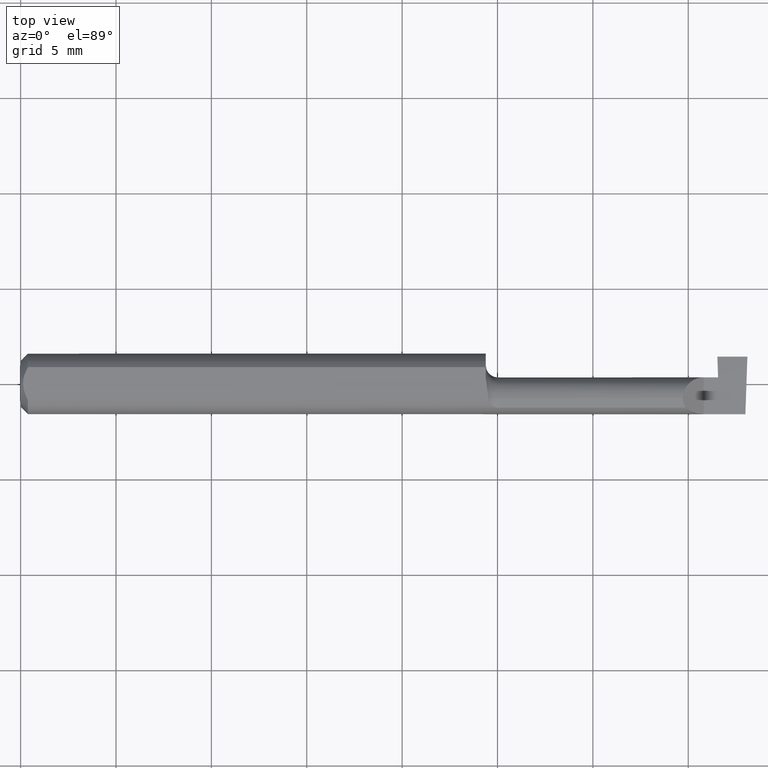
[diagram: clean part render]
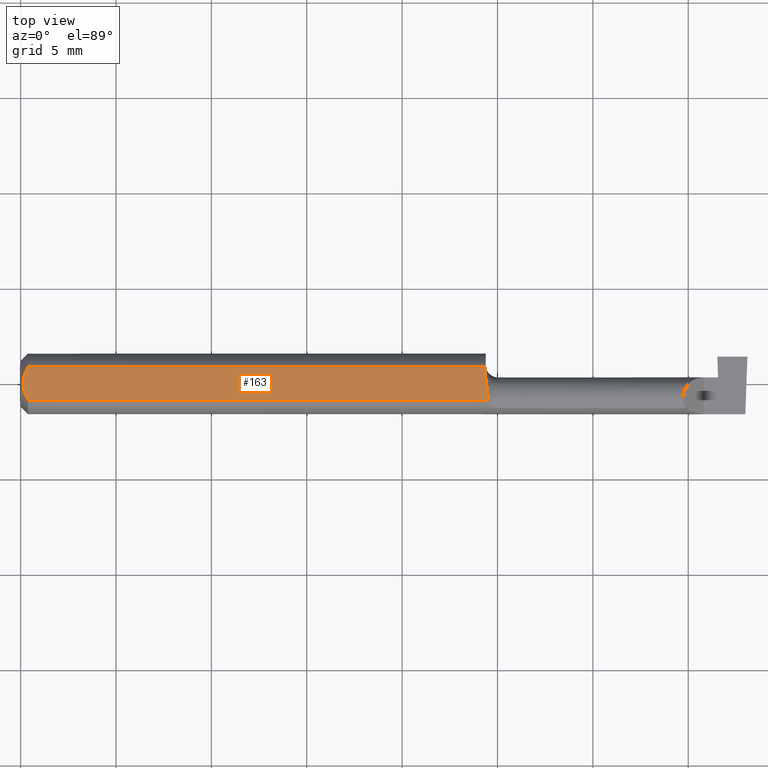
[diagram: same view with one face highlighted and labeled with its STEP entity id]
A machine part, top view. The second image highlights one B-rep face of the part: STEP entity #163.
In plain terms, the highlighted planar face has unit normal (0, -0, 1).
Its self-contained STEP definition (entity closure, byte-faithful):
#4 = LINE ( 'NONE', #331, #316 ) ;
#16 = EDGE_CURVE ( 'NONE', #155, #167, #554, .T. ) ;
#36 = CARTESIAN_POINT ( 'NONE',  ( 0.9653849547540671594, -0.02950000000000013375, 0.05250000000000000500 ) ) ;
#55 = CARTESIAN_POINT ( 'NONE',  ( 1.500000000000000222, -0.06250000000000001388, 0.05250000000000000500 ) ) ;
#64 = DIRECTION ( 'NONE',  ( 0.000000000000000000, -0.000000000000000000, 1.000000000000000000 ) ) ;
#72 = CARTESIAN_POINT ( 'NONE',  ( 0.004999999999989314207, 8.235553591830799656E-16, 0.05250000000000000500 ) ) ;
#77 = CARTESIAN_POINT ( 'NONE',  ( 0.009676924495017957123, -0.02328413057436891712, 0.05250000000000001193 ) ) ;
#84 = VECTOR ( 'NONE', #251, 39.37007874015748143 ) ;
#89 = CARTESIAN_POINT ( 'NONE',  ( 0.000000000000000000, 0.03391164991562636150, 0.05249999999999998418 ) ) ;
#108 = CARTESIAN_POINT ( 'NONE',  ( 0.9652401474686986838, -0.03391164991562652803, 0.05250000000000000500 ) ) ;
#110 = ORIENTED_EDGE ( 'NONE', *, *, #500, .T. ) ;
#115 = ORIENTED_EDGE ( 'NONE', *, *, #16, .T. ) ;
#136 = ORIENTED_EDGE ( 'NONE', *, *, #401, .T. ) ;
#152 = CARTESIAN_POINT ( 'NONE',  ( 0.01499999999999999771, 0.03391164991562633374, 0.05250000000000000500 ) ) ;
#155 = VERTEX_POINT ( 'NONE', #276 ) ;
#159 = CARTESIAN_POINT ( 'NONE',  ( 0.9600000000000001865, 0.01371747331809206050, 0.05250000000000000500 ) ) ;
#161 = CARTESIAN_POINT ( 'NONE',  ( 0.9653849547540671594, -0.02950000000000013375, 0.05250000000000000500 ) ) ;
#163 = ADVANCED_FACE ( 'NONE', ( #555 ), #327, .T. ) ;
#167 = VERTEX_POINT ( 'NONE', #108 ) ;
#171 = VERTEX_POINT ( 'NONE', #227 ) ;
#172 = CARTESIAN_POINT ( 'NONE',  ( 0.9640045281090322549, -0.01491326039667815496, 0.05250000000000001193 ) ) ;
#188 = EDGE_LOOP ( 'NONE', ( #115, #566, #392, #457, #110, #264, #136 ) ) ;
#207 = CARTESIAN_POINT ( 'NONE',  ( 0.9653849547540669374, -0.03023591544404562875, 0.05250000000000001193 ) ) ;
#219 = CARTESIAN_POINT ( 'NONE',  ( 0.9612098179869770220, -0.0002889899750471561549, 0.05250000000000001193 ) ) ;
#227 = CARTESIAN_POINT ( 'NONE',  ( 0.9600000000000001865, 0.01371747331809206050, 0.05250000000000000500 ) ) ;
#236 = CARTESIAN_POINT ( 'NONE',  ( 0.004999999999998634009, -0.005964525438754507587, 0.05250000000000000500 ) ) ;
#251 = DIRECTION ( 'NONE',  ( -1.000000000000000000, -0.000000000000000000, -0.000000000000000000 ) ) ;
#264 = ORIENTED_EDGE ( 'NONE', *, *, #466, .T. ) ;
#276 = CARTESIAN_POINT ( 'NONE',  ( 0.01499999999999999944, -0.03391164991562636150, 0.05249999999999998418 ) ) ;
#294 = CARTESIAN_POINT ( 'NONE',  ( 0.01216049014016022493, -0.02867836381244416935, 0.05250000000000000500 ) ) ;
#302 = CARTESIAN_POINT ( 'NONE',  ( 0.01499999999999999771, 0.03391164991562633374, 0.05250000000000000500 ) ) ;
#306 = B_SPLINE_CURVE_WITH_KNOTS ( 'NONE', 3,
 ( #484, #469, #553, #207, #408 ),
 .UNSPECIFIED., .F., .F.,
 ( 4, 1, 4 ),
 ( 0.008235061335628374168, 0.008289682461098419469, 0.008344303586568464770 ),
 .UNSPECIFIED. ) ;
#310 = CARTESIAN_POINT ( 'NONE',  ( 0.004999999999989314207, 8.235553591830799656E-16, 0.05250000000000000500 ) ) ;
#316 = VECTOR ( 'NONE', #438, 39.37007874015748143 ) ;
#317 = DIRECTION ( 'NONE',  ( 1.000000000000000000, 0.000000000000000000, 0.000000000000000000 ) ) ;
#327 = PLANE ( 'NONE',  #653 ) ;
#331 = CARTESIAN_POINT ( 'NONE',  ( 0.9600000000000001865, -0.06250000000000001388, 0.05250000000000000500 ) ) ;
#392 = ORIENTED_EDGE ( 'NONE', *, *, #712, .T. ) ;
#401 = EDGE_CURVE ( 'NONE', #417, #155, #529, .T. ) ;
#408 = CARTESIAN_POINT ( 'NONE',  ( 0.9653849547540671594, -0.02950000000000013375, 0.05250000000000000500 ) ) ;
#417 = VERTEX_POINT ( 'NONE', #310 ) ;
#426 = CARTESIAN_POINT ( 'NONE',  ( 0.009668628632509970039, 0.02325858892916567860, 0.05250000000000001193 ) ) ;
#438 = DIRECTION ( 'NONE',  ( -0.000000000000000000, 1.000000000000000000, 0.000000000000000000 ) ) ;
#447 = B_SPLINE_CURVE_WITH_KNOTS ( 'NONE', 3,
 ( #302, #596, #426, #643, #600, #472 ),
 .UNSPECIFIED., .F., .F.,
 ( 4, 2, 4 ),
 ( 0.0009797930073890425730, 0.001428868798926340253, 0.001877944590463637717 ),
 .UNSPECIFIED. ) ;
#457 = ORIENTED_EDGE ( 'NONE', *, *, #679, .T. ) ;
#463 = CARTESIAN_POINT ( 'NONE',  ( 0.9600000000000001865, 0.03391164991562636150, 0.05250000000000000500 ) ) ;
#464 = CARTESIAN_POINT ( 'NONE',  ( 0.006056885874551373727, -0.01188654981375985957, 0.05250000000000001193 ) ) ;
#466 = EDGE_CURVE ( 'NONE', #535, #417, #447, .T. ) ;
#469 = CARTESIAN_POINT ( 'NONE',  ( 0.9652878264274468156, -0.03317699972735688868, 0.05250000000000000500 ) ) ;
#472 = CARTESIAN_POINT ( 'NONE',  ( 0.004999999999989314207, 8.235553591830799656E-16, 0.05250000000000000500 ) ) ;
#484 = CARTESIAN_POINT ( 'NONE',  ( 0.9652401474686986838, -0.03391164991562652803, 0.05250000000000000500 ) ) ;
#500 = EDGE_CURVE ( 'NONE', #508, #535, #593, .T. ) ;
#508 = VERTEX_POINT ( 'NONE', #463 ) ;
#510 = CARTESIAN_POINT ( 'NONE',  ( 0.9600000000000002975, 0.006622688445287778711, 0.05250000000000000500 ) ) ;
#524 = CARTESIAN_POINT ( 'NONE',  ( 0.01499999999999999944, -0.03391164991562636150, 0.05249999999999998418 ) ) ;
#529 = B_SPLINE_CURVE_WITH_KNOTS ( 'NONE', 3,
 ( #72, #236, #464, #77, #294, #524 ),
 .UNSPECIFIED., .F., .F.,
 ( 4, 2, 4 ),
 ( 0.001877944590463637717, 0.002327931134338583757, 0.002777917678213529581 ),
 .UNSPECIFIED. ) ;
#535 = VERTEX_POINT ( 'NONE', #152 ) ;
#553 = CARTESIAN_POINT ( 'NONE',  ( 0.9653604307877771129, -0.03170709554003017794, 0.05249999999999999806 ) ) ;
#554 = LINE ( 'NONE', #693, #589 ) ;
#555 = FACE_OUTER_BOUND ( 'NONE', #188, .T. ) ;
#566 = ORIENTED_EDGE ( 'NONE', *, *, #609, .T. ) ;
#589 = VECTOR ( 'NONE', #317, 39.37007874015748143 ) ;
#593 = LINE ( 'NONE', #89, #84 ) ;
#596 = CARTESIAN_POINT ( 'NONE',  ( 0.01218419045468773464, 0.02872204407162096823, 0.05250000000000001193 ) ) ;
#600 = CARTESIAN_POINT ( 'NONE',  ( 0.004999999999999040802, 0.005952453510029875015, 0.05249999999999999806 ) ) ;
#606 = B_SPLINE_CURVE_WITH_KNOTS ( 'NONE', 3,
 ( #161, #661, #172, #219, #510, #159 ),
 .UNSPECIFIED., .F., .F.,
 ( 4, 2, 4 ),
 ( 0.008344303586568464770, 0.008884272709220776207, 0.009424241831873087644 ),
 .UNSPECIFIED. ) ;
#609 = EDGE_CURVE ( 'NONE', #167, #677, #306, .T. ) ;
#611 = DIRECTION ( 'NONE',  ( 1.000000000000000000, 0.000000000000000000, -0.000000000000000000 ) ) ;
#643 = CARTESIAN_POINT ( 'NONE',  ( 0.006063917085846147297, 0.01190810954070469288, 0.05250000000000001887 ) ) ;
#653 = AXIS2_PLACEMENT_3D ( 'NONE', #55, #64, #611 ) ;
#661 = CARTESIAN_POINT ( 'NONE',  ( 0.9653849547540669374, -0.02222494637838562728, 0.05250000000000000500 ) ) ;
#677 = VERTEX_POINT ( 'NONE', #36 ) ;
#679 = EDGE_CURVE ( 'NONE', #171, #508, #4, .T. ) ;
#693 = CARTESIAN_POINT ( 'NONE',  ( 0.000000000000000000, -0.03391164991562636150, 0.05249999999999998418 ) ) ;
#712 = EDGE_CURVE ( 'NONE', #677, #171, #606, .T. ) ;